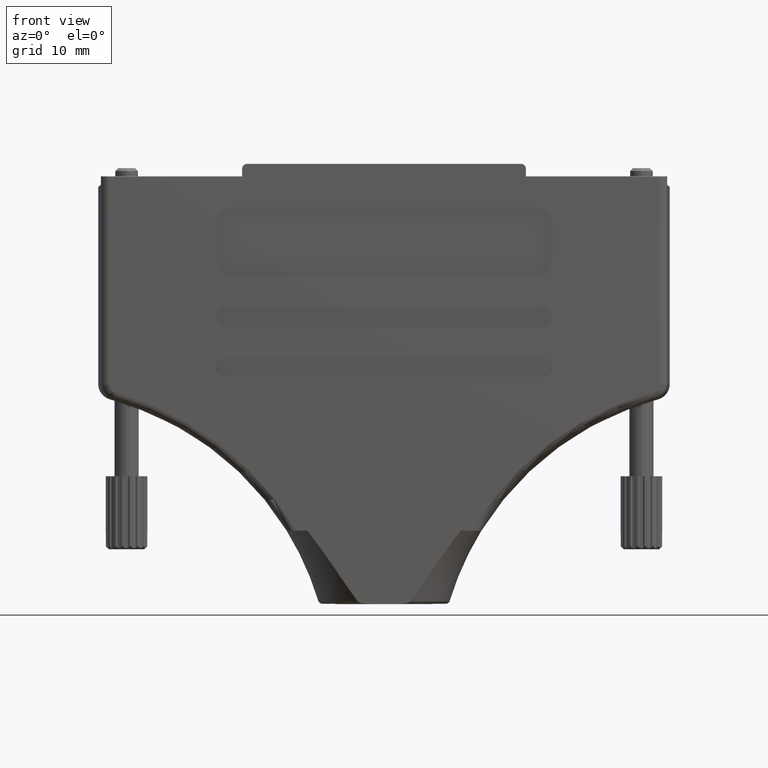
[diagram: clean part render]
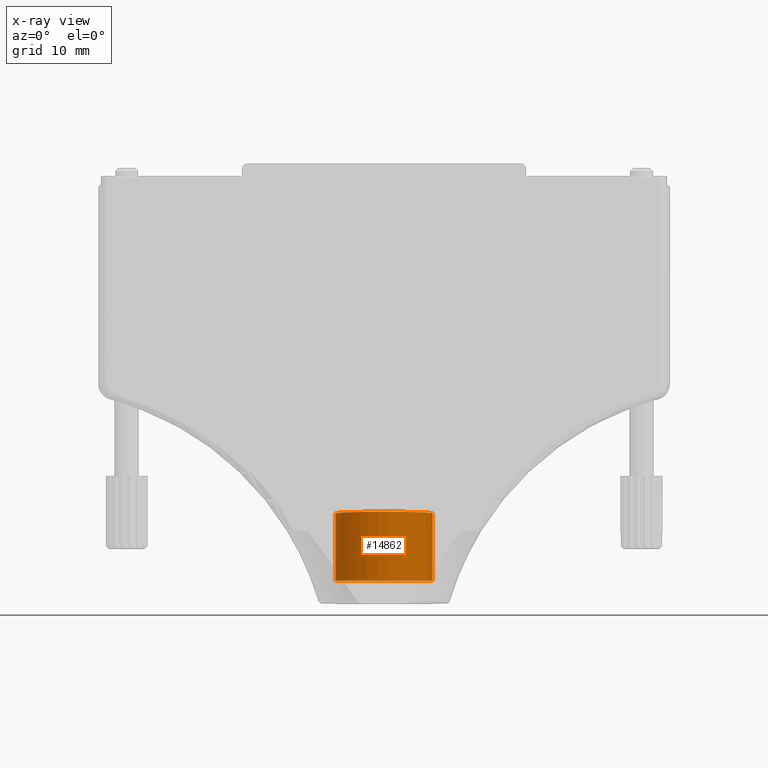
[diagram: x-ray — body ghosted, one internal face saturated and labeled with its STEP entity id]
A machine part, front view, then the same camera in x-ray: the body is ghosted and one INTERNAL B-rep face — a face not visible from any outside direction — is saturated and labeled: STEP entity #14862.
In plain terms, the highlighted cylindrical surface (partial cylindrical patch) has radius 6 mm, axis along (-0, -0, -1).
Its self-contained STEP definition (entity closure, byte-faithful):
#548 =( BOUNDED_CURVE ( )  B_SPLINE_CURVE ( 3, ( #20295, #3092, #19802, #10966 ),
 .UNSPECIFIED., .F., .F. ) 
 B_SPLINE_CURVE_WITH_KNOTS ( ( 4, 4 ),
 ( 4.628958893774074213, 4.712388980384689674 ),
 .UNSPECIFIED. ) 
 CURVE ( )  GEOMETRIC_REPRESENTATION_ITEM ( )  RATIONAL_B_SPLINE_CURVE ( ( 1.000000000000000000, 0.9994200358298013231, 0.9994200358298013231, 1.000000000000000000 ) ) 
 REPRESENTATION_ITEM ( '' )  );
#642 = CARTESIAN_POINT ( 'NONE',  ( -19.75000000000000000, -0.4999999999999995559, -9.949999999999999289 ) ) ;
#816 = DIRECTION ( 'NONE',  ( -1.000000000000000000, 0.000000000000000000, 0.000000000000000000 ) ) ;
#1030 = VERTEX_POINT ( 'NONE', #4205 ) ;
#2363 = VERTEX_POINT ( 'NONE', #4481 ) ;
#2366 = CARTESIAN_POINT ( 'NONE',  ( -25.72913037155070271, -3.252606517456513302E-16, -9.949999999999999289 ) ) ;
#2465 = CARTESIAN_POINT ( 'NONE',  ( -24.87496888990060029, 10.21428571428571352, -9.843309283048577996 ) ) ;
#2588 = DIRECTION ( 'NONE',  ( 0.000000000000000000, 0.000000000000000000, 1.000000000000000000 ) ) ;
#2873 = VECTOR ( 'NONE', #11021, 1000.000000000000000 ) ;
#3092 = CARTESIAN_POINT ( 'NONE',  ( -25.74303942029673919, -0.1663280315935980469, -11.59959363791231191 ) ) ;
#3505 = CARTESIAN_POINT ( 'NONE',  ( -25.75000000000000355, -0.4999999999999995559, -9.949999999999999289 ) ) ;
#4199 = CARTESIAN_POINT ( 'NONE',  ( -25.72913037155070271, -3.252606517456513302E-16, -10.20000000000000107 ) ) ;
#4205 = CARTESIAN_POINT ( 'NONE',  ( -13.77086962844929907, -3.252606517456513302E-16, -10.20000000000000284 ) ) ;
#4343 = CYLINDRICAL_SURFACE ( 'NONE', #11132, 6.000000000000001776 ) ;
#4481 = CARTESIAN_POINT ( 'NONE',  ( -25.72913037155070271, 0.000000000000000000, -11.39999999999999858 ) ) ;
#4568 = VECTOR ( 'NONE', #7498, 1000.000000000000000 ) ;
#4595 = DIRECTION ( 'NONE',  ( -1.000000000000000000, 0.000000000000000000, 0.000000000000000000 ) ) ;
#5128 = EDGE_CURVE ( 'NONE', #7914, #1030, #19182, .T. ) ;
#5598 = AXIS2_PLACEMENT_3D ( 'NONE', #9320, #20982, #816 ) ;
#5682 = CARTESIAN_POINT ( 'NONE',  ( -25.75000000000000355, -0.5000000000000013323, -11.99999999999998401 ) ) ;
#5709 = EDGE_LOOP ( 'NONE', ( #22785, #15117, #23158, #10926, #19679, #16177, #21993, #15868 ) ) ;
#5921 = CARTESIAN_POINT ( 'NONE',  ( -13.77086962844929907, -3.252606517456513302E-16, -10.20000000000000284 ) ) ;
#6224 = EDGE_CURVE ( 'NONE', #17935, #2363, #21072, .T. ) ;
#6632 = VERTEX_POINT ( 'NONE', #10332 ) ;
#7042 = CARTESIAN_POINT ( 'NONE',  ( -25.75000000000000355, -0.4999999999999995559, -18.50000000000000000 ) ) ;
#7238 = VERTEX_POINT ( 'NONE', #16648 ) ;
#7498 = DIRECTION ( 'NONE',  ( -0.000000000000000000, -0.000000000000000000, -1.000000000000000000 ) ) ;
#7845 = EDGE_CURVE ( 'NONE', #17935, #1030, #12929, .T. ) ;
#7908 = DIRECTION ( 'NONE',  ( -0.000000000000000000, -0.000000000000000000, -1.000000000000000000 ) ) ;
#7914 = VERTEX_POINT ( 'NONE', #19191 ) ;
#9158 = LINE ( 'NONE', #3505, #2873 ) ;
#9320 = CARTESIAN_POINT ( 'NONE',  ( -19.75000000000000000, -0.4999999999999995559, -18.50000000000000000 ) ) ;
#10332 = CARTESIAN_POINT ( 'NONE',  ( -13.74999999999999822, -0.4999999999999303890, -18.50000000000000000 ) ) ;
#10383 = FACE_OUTER_BOUND ( 'NONE', #5709, .T. ) ;
#10926 = ORIENTED_EDGE ( 'NONE', *, *, #5128, .F. ) ;
#10966 = CARTESIAN_POINT ( 'NONE',  ( -25.75000000000000355, -0.5000000000000013323, -11.99999999999998401 ) ) ;
#10995 = CARTESIAN_POINT ( 'NONE',  ( -13.75696057970326436, -0.1663280315936016551, -11.59959363791231723 ) ) ;
#11021 = DIRECTION ( 'NONE',  ( -0.000000000000000000, -0.000000000000000000, -1.000000000000000000 ) ) ;
#11132 = AXIS2_PLACEMENT_3D ( 'NONE', #642, #19587, #4595 ) ;
#12830 = CARTESIAN_POINT ( 'NONE',  ( -13.74999999999999822, -0.5000000000000013323, -11.99999999999998401 ) ) ;
#12929 =( BOUNDED_CURVE ( )  B_SPLINE_CURVE ( 3, ( #4199, #2465, #17587, #5921 ),
 .UNSPECIFIED., .F., .F. ) 
 B_SPLINE_CURVE_WITH_KNOTS ( ( 4, 4 ),
 ( 1.654226413405515572, 4.628958893774078653 ),
 .UNSPECIFIED. ) 
 CURVE ( )  GEOMETRIC_REPRESENTATION_ITEM ( )  RATIONAL_B_SPLINE_CURVE ( ( 1.000000000000000000, 0.3888888888888888951, 0.3888888888888888951, 1.000000000000000000 ) ) 
 REPRESENTATION_ITEM ( '' )  );
#13289 = VECTOR ( 'NONE', #7908, 1000.000000000000000 ) ;
#13391 = CARTESIAN_POINT ( 'NONE',  ( -13.74999999999999822, -0.4999999999999988343, -9.949999999999999289 ) ) ;
#13718 = VERTEX_POINT ( 'NONE', #7042 ) ;
#14583 = EDGE_CURVE ( 'NONE', #23226, #13718, #9158, .T. ) ;
#14797 = CARTESIAN_POINT ( 'NONE',  ( -13.77086962844929729, 0.000000000000000000, -11.39999999999999858 ) ) ;
#14862 = ADVANCED_FACE ( 'NONE', ( #10383 ), #4343, .T. ) ;
#15117 = ORIENTED_EDGE ( 'NONE', *, *, #6224, .F. ) ;
#15868 = ORIENTED_EDGE ( 'NONE', *, *, #14583, .F. ) ;
#16177 = ORIENTED_EDGE ( 'NONE', *, *, #20619, .T. ) ;
#16195 = CIRCLE ( 'NONE', #5598, 6.000000000000001776 ) ;
#16648 = CARTESIAN_POINT ( 'NONE',  ( -13.74999999999999822, -0.5000000000000013323, -11.99999999999998401 ) ) ;
#16689 = EDGE_CURVE ( 'NONE', #2363, #23226, #548, .T. ) ;
#16708 =( BOUNDED_CURVE ( )  B_SPLINE_CURVE ( 3, ( #12830, #20331, #10995, #14797 ),
 .UNSPECIFIED., .F., .F. ) 
 B_SPLINE_CURVE_WITH_KNOTS ( ( 4, 4 ),
 ( 1.570796326794896336, 1.654226413405511575 ),
 .UNSPECIFIED. ) 
 CURVE ( )  GEOMETRIC_REPRESENTATION_ITEM ( )  RATIONAL_B_SPLINE_CURVE ( ( 1.000000000000000000, 0.9994200358298013231, 0.9994200358298013231, 1.000000000000000000 ) ) 
 REPRESENTATION_ITEM ( '' )  );
#17587 = CARTESIAN_POINT ( 'NONE',  ( -14.62503111009939971, 10.21428571428571352, -9.843309283048577996 ) ) ;
#17935 = VERTEX_POINT ( 'NONE', #20910 ) ;
#19182 = LINE ( 'NONE', #19306, #23062 ) ;
#19191 = CARTESIAN_POINT ( 'NONE',  ( -13.77086962844929729, 0.000000000000000000, -11.39999999999999858 ) ) ;
#19306 = CARTESIAN_POINT ( 'NONE',  ( -13.77086962844929907, -3.252606517456513302E-16, -9.949999999999999289 ) ) ;
#19504 = EDGE_CURVE ( 'NONE', #13718, #6632, #16195, .T. ) ;
#19587 = DIRECTION ( 'NONE',  ( -0.000000000000000000, -0.000000000000000000, -1.000000000000000000 ) ) ;
#19679 = ORIENTED_EDGE ( 'NONE', *, *, #20158, .F. ) ;
#19802 = CARTESIAN_POINT ( 'NONE',  ( -25.75000000000000711, -0.3330914150475700608, -11.79970969805707348 ) ) ;
#20158 = EDGE_CURVE ( 'NONE', #7238, #7914, #16708, .T. ) ;
#20295 = CARTESIAN_POINT ( 'NONE',  ( -25.72913037155070271, 0.000000000000000000, -11.39999999999999858 ) ) ;
#20331 = CARTESIAN_POINT ( 'NONE',  ( -13.75000000000000000, -0.3330914150475733360, -11.79970969805707703 ) ) ;
#20619 = EDGE_CURVE ( 'NONE', #7238, #6632, #24334, .T. ) ;
#20910 = CARTESIAN_POINT ( 'NONE',  ( -25.72913037155070271, -3.252606517456513302E-16, -10.20000000000000107 ) ) ;
#20982 = DIRECTION ( 'NONE',  ( 0.000000000000000000, 0.000000000000000000, -1.000000000000000000 ) ) ;
#21072 = LINE ( 'NONE', #2366, #13289 ) ;
#21993 = ORIENTED_EDGE ( 'NONE', *, *, #19504, .F. ) ;
#22785 = ORIENTED_EDGE ( 'NONE', *, *, #16689, .F. ) ;
#23062 = VECTOR ( 'NONE', #2588, 1000.000000000000000 ) ;
#23158 = ORIENTED_EDGE ( 'NONE', *, *, #7845, .T. ) ;
#23226 = VERTEX_POINT ( 'NONE', #5682 ) ;
#24334 = LINE ( 'NONE', #13391, #4568 ) ;